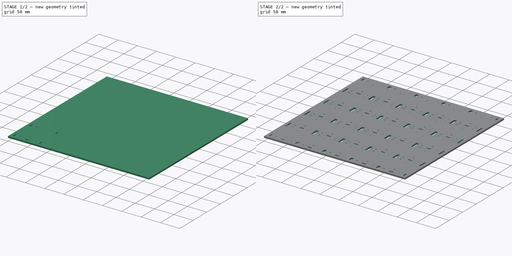
[diagram: build sequence overview — one tinted view per stage of 2, left to right]
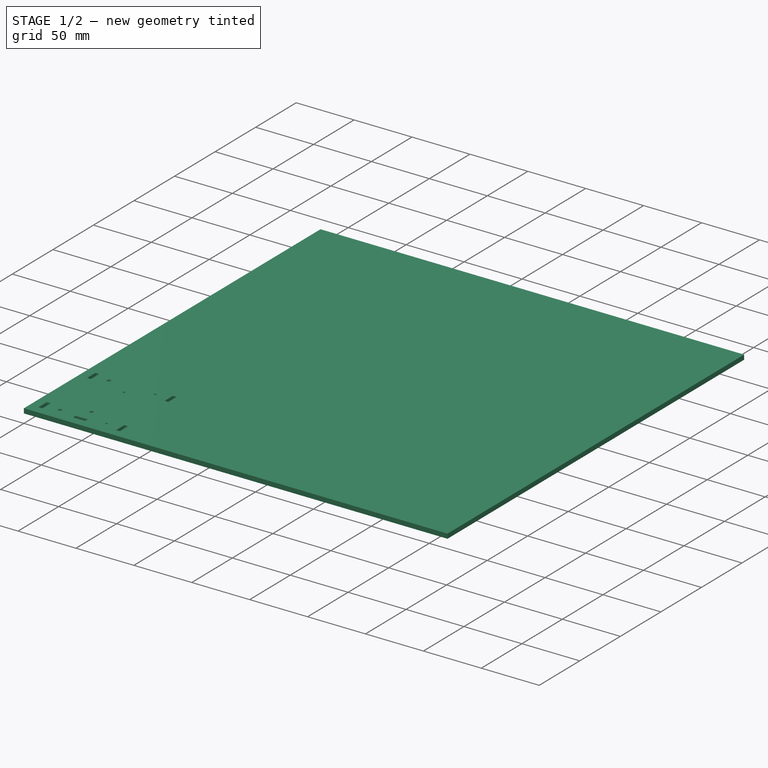
[diagram: stage 1 of 2 — iso view after this stage's code; geometry added in this stage tinted green]
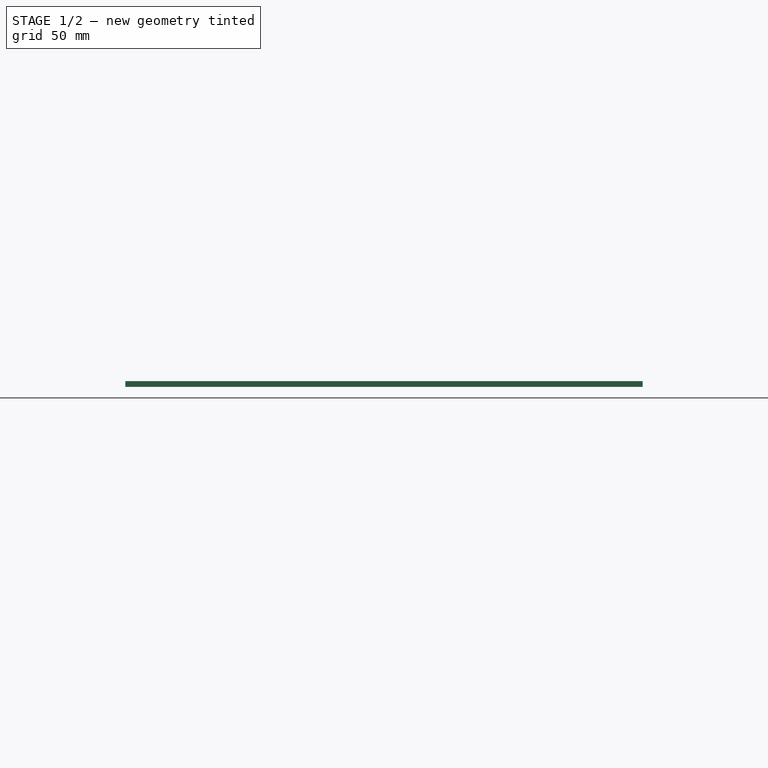
[diagram: stage 1 of 2 — front view after this stage's code; geometry added in this stage tinted green]
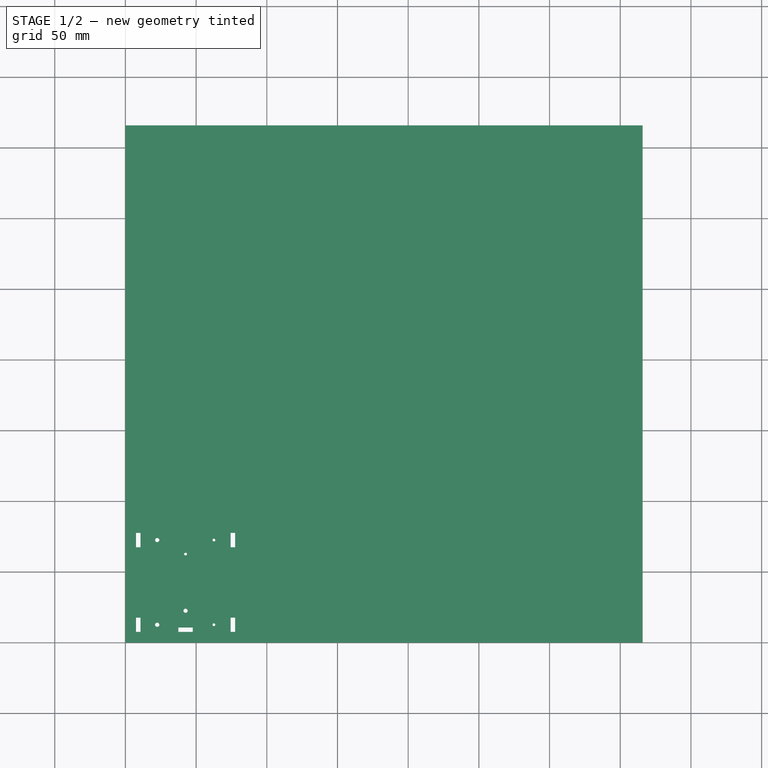
[diagram: stage 1 of 2 — top view after this stage's code; geometry added in this stage tinted green]
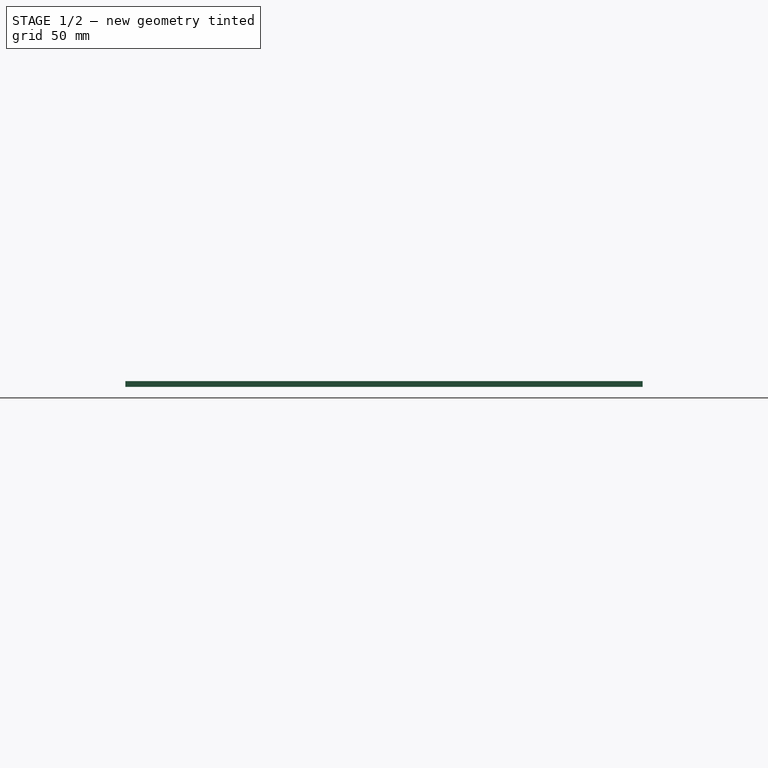
[diagram: stage 1 of 2 — right view after this stage's code; geometry added in this stage tinted green]
FCSTD DOCUMENT  (FreeCAD 0.19R24291 (Git))
Label: Bottom
License: All rights reserved
LicenseURL: http://en.wikipedia.org/wiki/All_rights_reserved
objects: PartDesign::CoordinateSystem×2, Sketcher::SketchObject×2, PartDesign::LinearPattern×2, App::FeaturePython×1, PartDesign::Pad×1, PartDesign::Pocket×1, PartDesign::MultiTransform×1, PartDesign::Body×1, App::Part×1
note: 12 computed .brp shape members not serialized (recipe doc carries the construction recipe); baked Part::Feature solids carry a one-line shape summary decoded from their .brp

FEATURE [PartDesign::CoordinateSystem] LCS_0
  AttacherType = Attacher::AttachEngine3D
  MapMode = 2
  Support = -> [X_Axis]
FEATURE [PartDesign::CoordinateSystem] LCS_0001
  AttacherType = Attacher::AttachEngine3D
  MapMode = 2
  Support = -> [X_Axis001]
FEATURE [App::FeaturePython] PropertyBag  label="Attributes"  # WARN: FeaturePython — macro-defined, semantics opaque (R4)
  BackWidth = 395.8
  Back_Space = 100
  BottomDepth = 365.8
  BottomWidth = 365.8
  Bottom_Height_BH = 4
  Bottom_Space_Height = 20
  Box_Tolerance = 0.2
  Boxes_Depth = 5
  Boxes_Height = 40
  Boxes_Width = 5
  CustomPropertyGroups = shape | attributes
  DrawerDepth_DD = 465.8
  DrawerHeight_DH = 64
  DrawerWidth_DW = 410.8
  ScrewPreWhole = 3
  WallThickness_WT = 15
  expr: DrawerDepth_DD = Boxes_Depth * 70mm + WallThickness_WT + Back_Space + Box_Tolerance * (Boxes_Width - 1)
  expr: BottomWidth = Boxes_Width * 70mm + WallThickness_WT + Box_Tolerance * (Boxes_Width - 1)
  expr: DrawerWidth_DW = Boxes_Width * 70mm + WallThickness_WT * 4 + Box_Tolerance * (Boxes_Width - 1)
  expr: BackWidth = DrawerWidth_DW - WallThickness_WT
  expr: DrawerHeight_DH = Boxes_Height + Bottom_Height_BH + Bottom_Space_Height
  expr: BottomDepth = Boxes_Depth * 70mm + WallThickness_WT + Box_Tolerance * (Boxes_Width - 1)
FEATURE [Sketcher::SketchObject] Sketch
  FullyConstrained = true
  MapMode = 5
  Support = -> [XY_Plane001]
  expr: Constraints[9] = <<Attributes>>.BottomWidth
  expr: Constraints[10] = <<Attributes>>.BottomDepth
  sketch-geometry (4):
    g0: LineSegment StartX=0 StartY=0 StartZ=0 EndX=365.8 EndY=0 EndZ=0
    g1: LineSegment StartX=365.8 StartY=0 StartZ=0 EndX=365.8 EndY=365.8 EndZ=0
    g2: LineSegment StartX=365.8 StartY=365.8 StartZ=0 EndX=0 EndY=365.8 EndZ=0
    g3: LineSegment StartX=0 StartY=365.8 StartZ=0 EndX=0 EndY=0 EndZ=0
  constraints (11):
    c: Coincident(g0,g1)
    c: Coincident(g1,g2)
    c: Coincident(g2,g3)
    c: Coincident(g3,g0)
    c: Horizontal(g0)
    c: Horizontal(g2)
    c: Vertical(g1)
    c: Vertical(g3)
    c: Coincident(g0,g-1)
    c: Distance(g0) = 365.8
    c: Distance(g3) = 365.8
FEATURE [PartDesign::Pad] Pad
  Direction = (1,1,1)
  Length = 4
  Length2 = 100
  Profile = -> Sketch
  Type = 0
  expr: Length = <<Attributes>>.Bottom_Height_BH
FEATURE [Sketcher::SketchObject] Sketch001
  FullyConstrained = true
  MapMode = 5
  Placement = pos=(0,0,4) rot=(0,0,1;0rad)
  Support = -> [Pad]
  expr: Constraints[5] = 70mm + <<Attributes>>.Box_Tolerance / 2
  expr: Constraints[13] = <<Attributes>>.WallThickness_WT / 2
  expr: Constraints[14] = <<Attributes>>.WallThickness_WT / 2
  expr: Constraints[60] = 3mm + <<Attributes>>.Box_Tolerance
  expr: Constraints[6] = 70mm + <<Attributes>>.Box_Tolerance / 2
  expr: Constraints[59] = 10mm + <<Attributes>>.Box_Tolerance
  sketch-geometry (42):
    g0: LineSegment StartX=77.6 StartY=7.5 StartZ=0 EndX=77.6 EndY=77.6 EndZ=0
    g1: LineSegment StartX=77.6 StartY=77.6 StartZ=0 EndX=7.5 EndY=77.6 EndZ=0
    g2: LineSegment StartX=7.5 StartY=77.6 StartZ=0 EndX=7.5 EndY=7.5 EndZ=0
    g3: LineSegment StartX=7.5 StartY=7.5 StartZ=0 EndX=42.55 EndY=7.5 EndZ=0
    g4: LineSegment StartX=42.55 StartY=7.5 StartZ=0 EndX=77.6 EndY=7.5 EndZ=0
    g5: LineSegment StartX=7.5 StartY=77.6 StartZ=0 EndX=10.7 EndY=77.6 EndZ=0
    g6: LineSegment StartX=10.7 StartY=77.6 StartZ=0 EndX=10.7 EndY=67.4 EndZ=0
    g7: LineSegment StartX=10.7 StartY=67.4 StartZ=0 EndX=7.5 EndY=67.4 EndZ=0
    g8: LineSegment StartX=7.5 StartY=7.5 StartZ=0 EndX=10.7 EndY=7.5 EndZ=0
    g9: LineSegment StartX=10.7 StartY=7.5 StartZ=0 EndX=10.7 EndY=17.7 EndZ=0
    g10: LineSegment StartX=10.7 StartY=17.7 StartZ=0 EndX=7.5 EndY=17.7 EndZ=0
    g11: LineSegment StartX=77.6 StartY=77.6 StartZ=0 EndX=74.4 EndY=77.6 EndZ=0
    g12: LineSegment StartX=74.4 StartY=77.6 StartZ=0 EndX=74.4 EndY=67.4 EndZ=0
    g13: LineSegment StartX=74.4 StartY=67.4 StartZ=0 EndX=77.6 EndY=67.4 EndZ=0
    g14: LineSegment StartX=77.6 StartY=7.5 StartZ=0 EndX=74.4 EndY=7.5 EndZ=0
    g15: LineSegment StartX=74.4 StartY=7.5 StartZ=0 EndX=74.4 EndY=17.7 EndZ=0
    g16: LineSegment StartX=74.4 StartY=17.7 StartZ=0 EndX=77.6 EndY=17.7 EndZ=0
    g17: LineSegment StartX=37.45 StartY=10.7 StartZ=0 EndX=47.65 EndY=10.7 EndZ=0
    g18: LineSegment StartX=47.65 StartY=10.7 StartZ=0 EndX=47.65 EndY=7.5 EndZ=0
    g19: LineSegment StartX=37.45 StartY=7.5 StartZ=0 EndX=37.45 EndY=10.7 EndZ=0
    g20: LineSegment StartX=37.45 StartY=7.5 StartZ=0 EndX=42.55 EndY=7.5 EndZ=0
    g21: LineSegment StartX=42.55 StartY=7.5 StartZ=0 EndX=47.65 EndY=7.5 EndZ=0
    g22: LineSegment StartX=7.5 StartY=7.5 StartZ=0 EndX=7.5 EndY=12.6 EndZ=0
    g23: LineSegment StartX=7.5 StartY=12.6 StartZ=0 EndX=7.5 EndY=17.7 EndZ=0
    g24: LineSegment StartX=77.6 StartY=7.5 StartZ=0 EndX=77.6 EndY=12.6 EndZ=0
    g25: LineSegment StartX=77.6 StartY=12.6 StartZ=0 EndX=77.6 EndY=17.7 EndZ=0
    g26: LineSegment StartX=77.6 StartY=77.6 StartZ=0 EndX=77.6 EndY=72.5 EndZ=0
    g27: LineSegment StartX=77.6 StartY=72.5 StartZ=0 EndX=77.6 EndY=67.4 EndZ=0
    g28: LineSegment StartX=7.5 StartY=67.4 StartZ=0 EndX=7.5 EndY=72.5 EndZ=0
    g29: LineSegment StartX=7.5 StartY=72.5 StartZ=0 EndX=7.5 EndY=77.6 EndZ=0
    g30: Circle CenterX=22.5 CenterY=12.6 CenterZ=0 NormalX=0 NormalY=0 NormalZ=1 AngleXU=0 Radius=1.5
    g31: Circle CenterX=42.55 CenterY=22.5 CenterZ=0 NormalX=0 NormalY=0 NormalZ=1 AngleXU=0 Radius=1.5
    g32: Circle CenterX=22.5 CenterY=72.5 CenterZ=0 NormalX=0 NormalY=0 NormalZ=1 AngleXU=0 Radius=1.5
    g33: Circle CenterX=62.6 CenterY=72.5 CenterZ=0 NormalX=0 NormalY=0 NormalZ=1 AngleXU=0 Radius=1
    g34: Circle CenterX=62.6 CenterY=12.6 CenterZ=0 NormalX=0 NormalY=0 NormalZ=1 AngleXU=0 Radius=1
    g35: LineSegment StartX=7.5 StartY=12.6 StartZ=0 EndX=22.5 EndY=12.6 EndZ=0
    g36: LineSegment StartX=7.5 StartY=72.5 StartZ=0 EndX=22.5 EndY=72.5 EndZ=0
    g37: LineSegment StartX=77.6 StartY=72.5 StartZ=0 EndX=62.6 EndY=72.5 EndZ=0
    g38: LineSegment StartX=42.55 StartY=7.5 StartZ=0 EndX=42.55 EndY=22.5 EndZ=0
    g39: LineSegment StartX=77.6 StartY=12.6 StartZ=0 EndX=62.6 EndY=12.6 EndZ=0
    g40: LineSegment StartX=42.55 StartY=77.6 StartZ=0 EndX=42.55 EndY=62.6 EndZ=0
    g41: Circle CenterX=42.55 CenterY=62.6 CenterZ=0 NormalX=0 NormalY=0 NormalZ=1 AngleXU=0 Radius=1
  constraints (116):
    c: Coincident(g0,g1)
    c: Coincident(g1,g2)
    c: Horizontal(g1)
    c: Vertical(g0)
    c: Vertical(g2)
    c: Distance(g2) = 70.1
    c: Distance(g1) = 70.1
    c: Coincident(g2,g3)
    c: Horizontal(g3)
    c: Coincident(g3,g4)
    c: Coincident(g4,g0)
    c: Horizontal(g4)
    c: Equal(g3,g4)
    c: DistanceY(g-1,g2) = 7.5
    c: DistanceX(g-1,g2) = 7.5
    c: Coincident(g5,g6)
    c: Coincident(g6,g7)
    c: Horizontal(g5)
    c: Horizontal(g7)
    c: Vertical(g6)
    c: Coincident(g5,g1)
    c: Coincident(g8,g9)
    c: Coincident(g9,g10)
    c: Horizontal(g8)
    c: Horizontal(g10)
    c: Vertical(g9)
    c: Coincident(g8,g2)
    c: Coincident(g11,g12)
    c: Coincident(g12,g13)
    c: Horizontal(g11)
    c: Horizontal(g13)
    c: Vertical(g12)
    c: Coincident(g11,g0)
    c: Coincident(g14,g15)
    c: Coincident(g15,g16)
    c: Horizontal(g14)
    c: Horizontal(g16)
    c: Vertical(g15)
    c: Coincident(g14,g0)
    c: Coincident(g17,g18)
    c: Coincident(g19,g17)
    c: Horizontal(g17)
    c: Vertical(g18)
    c: Vertical(g19)
    c: Coincident(g19,g20)
    c: Horizontal(g20)
    c: Coincident(g20,g21)
    c: Coincident(g21,g18)
    c: Horizontal(g21)
    c: Equal(g20,g21)
    c: Equal(g17,g15)
    c: Equal(g15,g9)
    c: Equal(g9,g6)
    c: Equal(g6,g12)
    c: Coincident(g3,g20)
    c: Equal(g19,g10)
    c: Equal(g10,g7)
    c: Equal(g7,g13)
    c: Equal(g13,g16)
    c: Distance(g9) = 10.2
    c: Distance(g10) = 3.2
    c: Coincident(g8,g22)
    c: Vertical(g22)
    c: Coincident(g22,g23)
    c: Coincident(g23,g10)
    c: Vertical(g23)
    c: Equal(g23,g22)
    c: Coincident(g14,g24)
    c: Vertical(g24)
    c: Coincident(g24,g25)
    c: Coincident(g25,g16)
    c: Vertical(g25)
    c: Coincident(g11,g26)
    c: Vertical(g26)
    c: Coincident(g26,g27)
    c: Coincident(g27,g13)
    c: Vertical(g27)
    c: Coincident(g7,g28)
    c: Vertical(g28)
    c: Coincident(g28,g29)
    c: Coincident(g29,g5)
    c: Vertical(g29)
    c: Equal(g29,g28)
    c: Equal(g26,g27)
    c: Equal(g24,g25)
    c: Coincident(g35,g22)
    c: Coincident(g35,g30)
    c: Horizontal(g35)
    c: Coincident(g36,g28)
    c: Coincident(g36,g32)
    c: Coincident(g37,g26)
    c: Coincident(g37,g33)
    c: Coincident(g38,g20)
    c: Coincident(g38,g31)
    c: Coincident(g39,g24)
    c: Coincident(g39,g34)
    c: Horizontal(g39)
    c: Horizontal(g37)
    c: Horizontal(g36)
    c: Vertical(g38)
    c: Equal(g30,g32)
    c: Equal(g33,g34)
    c: Radius(g32) = 1.5
    c: Radius(g33) = 1
    c: PointOnObject(g40,g1)
    c: Vertical(g40)
    c: Coincident(g41,g40)
    c: Equal(g41,g33)
    c: Equal(g32,g31)
    c: Vertical(g41,g31)
    c: Equal(g40,g37)
    c: Equal(g40,g36)
    c: Equal(g36,g35)
    c: Equal(g35,g38)
    c: Equal(g38,g39)
    c: Distance(g35) = 15
FEATURE [PartDesign::Pocket] Pocket
  BaseFeature = -> Pad
  Length = 5
  Length2 = 100
  Profile = -> Sketch001
  Type = 1
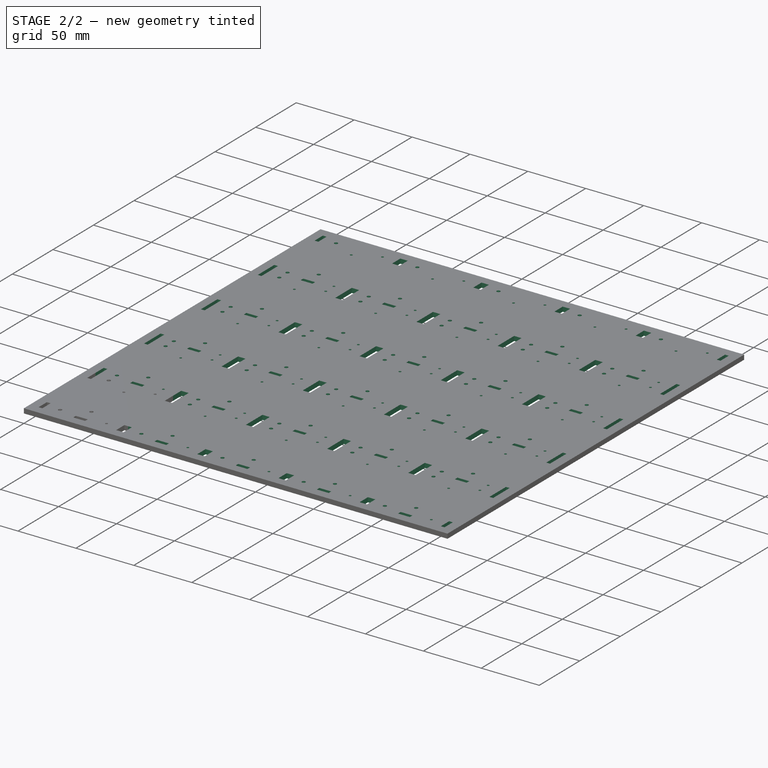
[diagram: stage 2 of 2 — iso view after this stage's code; geometry added in this stage tinted green]
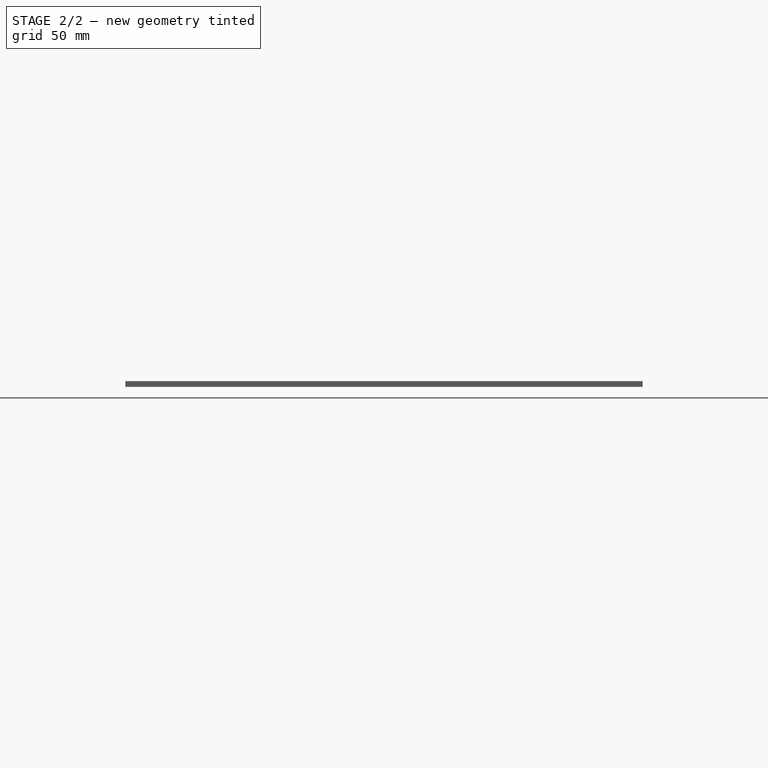
[diagram: stage 2 of 2 — front view after this stage's code; geometry added in this stage tinted green]
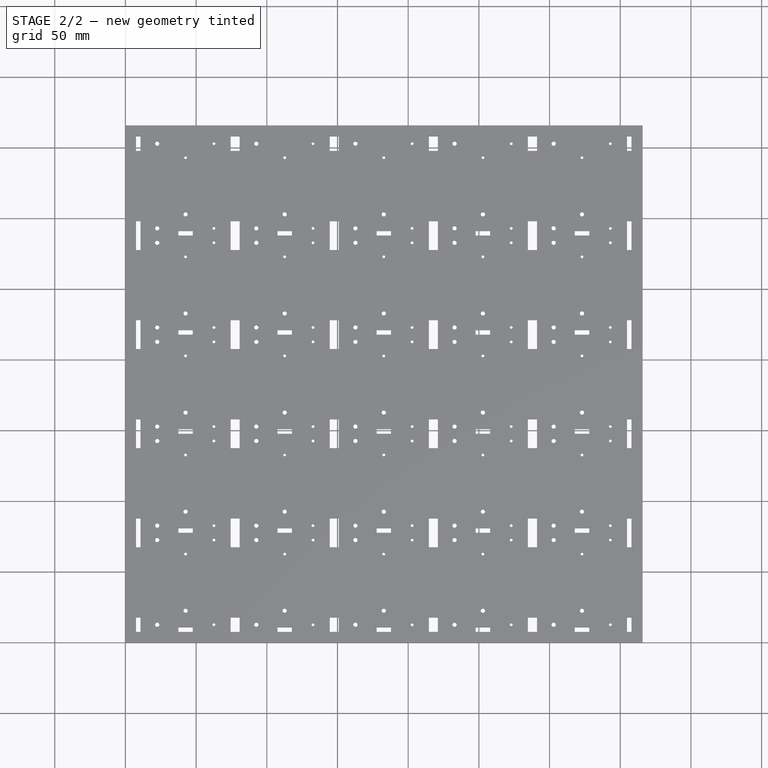
[diagram: stage 2 of 2 — top view after this stage's code; geometry added in this stage tinted green]
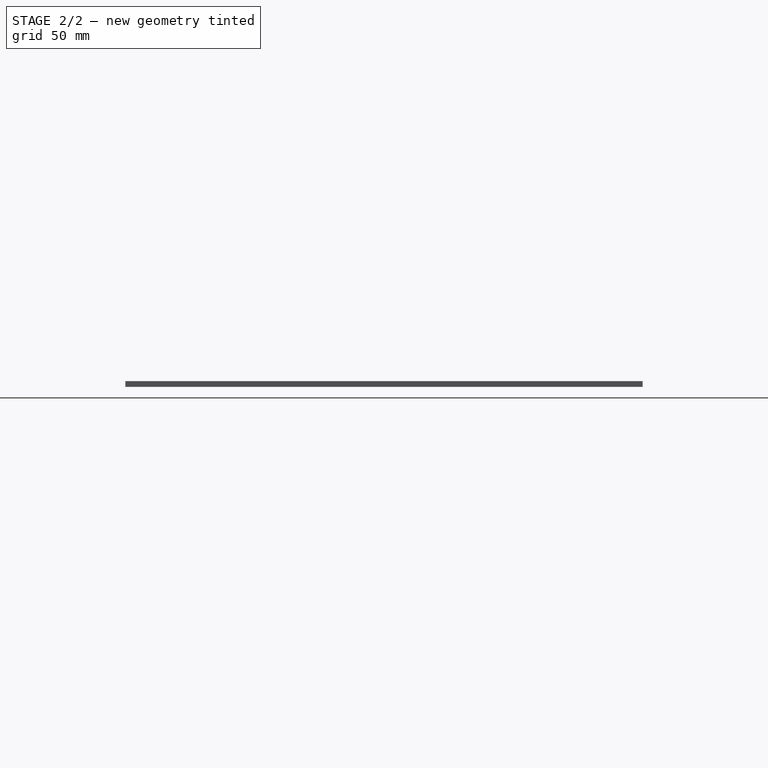
[diagram: stage 2 of 2 — right view after this stage's code; geometry added in this stage tinted green]
FEATURE [PartDesign::LinearPattern] LinearPattern
  Direction = -> Sketch001 [H_Axis]
  Length = 280.4
  Occurrences = 5
  expr: Length = (<<Attributes>>.Boxes_Width - 1) * (70mm + <<Attributes>>.Box_Tolerance / 2)
  expr: Occurrences = <<Attributes>>.Boxes_Width
FEATURE [PartDesign::LinearPattern] LinearPattern001
  Direction = -> Y_Axis001
  Length = 280.4
  Occurrences = 5
  expr: Length = (<<Attributes>>.Boxes_Depth - 1) * (70mm + <<Attributes>>.Box_Tolerance / 2)
  expr: Occurrences = <<Attributes>>.Boxes_Depth
FEATURE [PartDesign::MultiTransform] MultiTransform
  BaseFeature = -> Pocket
  Originals = -> [Pocket]
  Transformations = -> [LinearPattern,LinearPattern001]
FEATURE [PartDesign::Body] Bottom001
  Group = -> [LCS_0001,Sketch,Pad,Sketch001,Pocket,MultiTransform,LinearPattern,LinearPattern001]
  Origin = -> Origin001
  Tip = -> MultiTransform
FEATURE [App::Part] Bottom
  Group = -> [LCS_0,Bottom001,PropertyBag]
  Origin = -> Origin
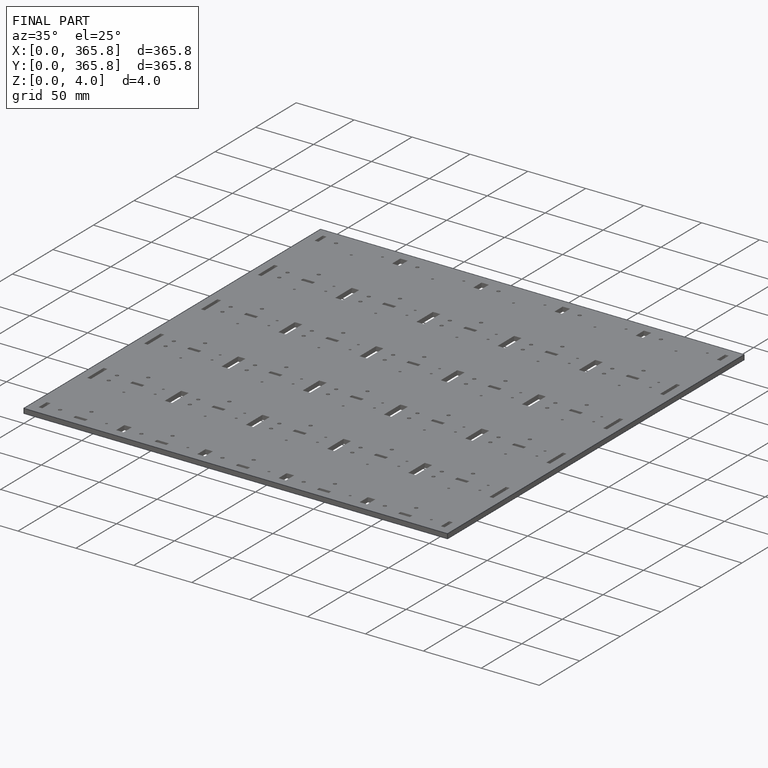
[diagram: finished part — iso view with bounding-box wireframe]
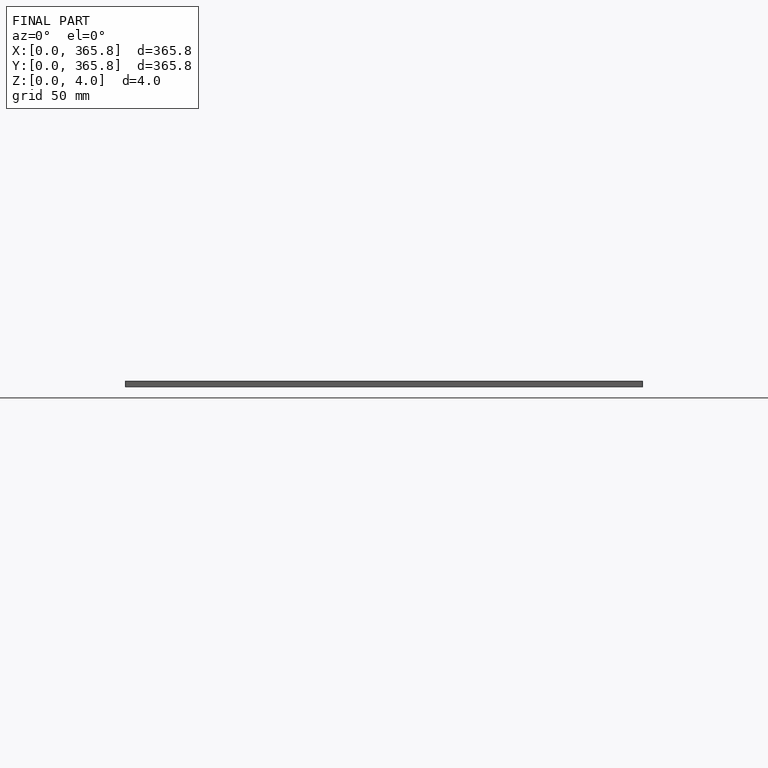
[diagram: finished part — front view with bounding-box wireframe]
